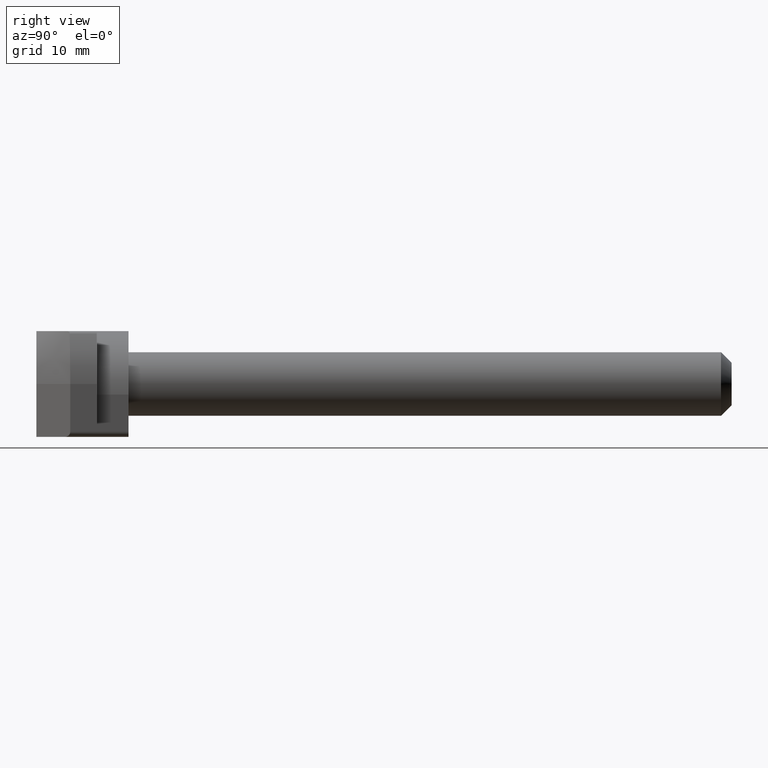
[diagram: clean part render]
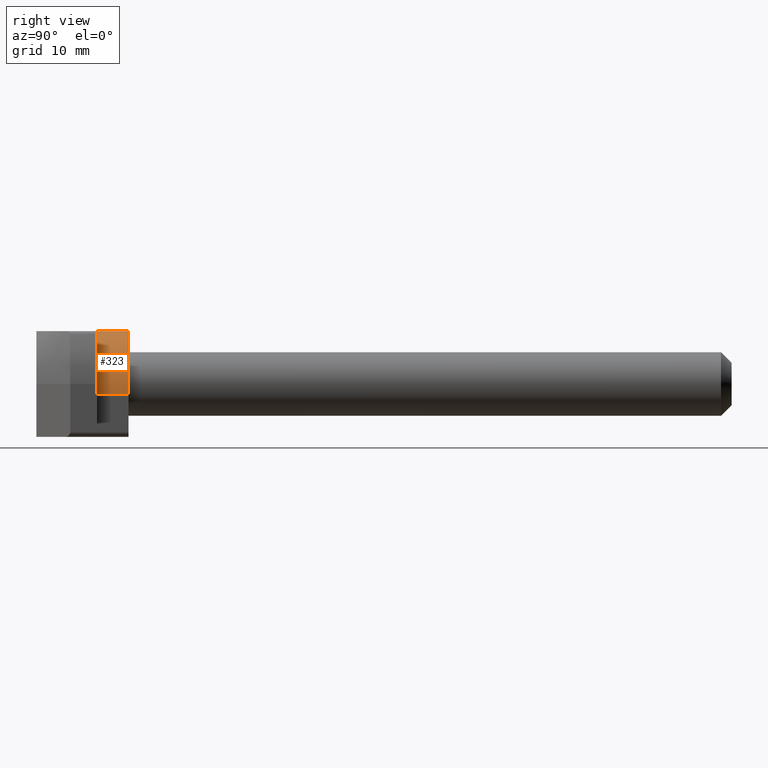
[diagram: same view with one face highlighted and labeled with its STEP entity id]
A machine part, right view. The second image highlights one B-rep face of the part: STEP entity #323.
In plain terms, the highlighted cylindrical surface (partial cylindrical patch) has radius 6 mm, axis along (0, 1, 0).
Its self-contained STEP definition (entity closure, byte-faithful):
#25 = DIRECTION ( 'NONE',  ( 0.000000000000000000, 0.000000000000000000, -1.000000000000000000 ) ) ;
#98 = DIRECTION ( 'NONE',  ( 0.000000000000000000, 0.000000000000000000, -1.000000000000000000 ) ) ;
#149 = ORIENTED_EDGE ( 'NONE', *, *, #272, .F. ) ;
#178 = CARTESIAN_POINT ( 'NONE',  ( -1.000000000000000888, 4.349999999999999645, -1.000000000000000000 ) ) ;
#208 = DIRECTION ( 'NONE',  ( -0.000000000000000000, -1.000000000000000000, -0.000000000000000000 ) ) ;
#214 = CARTESIAN_POINT ( 'NONE',  ( -1.000000000000000888, 1.349999999999999645, 5.000000000000000000 ) ) ;
#272 = EDGE_CURVE ( 'NONE', #911, #561, #376, .T. ) ;
#284 = CYLINDRICAL_SURFACE ( 'NONE', #755, 6.000000000000000000 ) ;
#308 = CIRCLE ( 'NONE', #590, 6.000000000000000000 ) ;
#323 = ADVANCED_FACE ( 'NONE', ( #368 ), #284, .T. ) ;
#342 = CARTESIAN_POINT ( 'NONE',  ( 4.999999999999999112, 4.349999999999999645, -1.000000000000000000 ) ) ;
#365 = AXIS2_PLACEMENT_3D ( 'NONE', #749, #729, #98 ) ;
#368 = FACE_OUTER_BOUND ( 'NONE', #921, .T. ) ;
#376 = CIRCLE ( 'NONE', #365, 6.000000000000000000 ) ;
#397 = DIRECTION ( 'NONE',  ( -0.000000000000000000, 1.000000000000000000, -0.000000000000000000 ) ) ;
#457 = VECTOR ( 'NONE', #917, 1000.000000000000000 ) ;
#491 = CARTESIAN_POINT ( 'NONE',  ( 4.999999999999999112, 4.349999999999999645, -1.000000000000000000 ) ) ;
#506 = DIRECTION ( 'NONE',  ( 0.000000000000000000, 0.000000000000000000, 1.000000000000000000 ) ) ;
#509 = CARTESIAN_POINT ( 'NONE',  ( -1.000000000000000888, 0.000000000000000000, -1.000000000000000000 ) ) ;
#513 = ORIENTED_EDGE ( 'NONE', *, *, #564, .F. ) ;
#544 = VECTOR ( 'NONE', #208, 1000.000000000000000 ) ;
#561 = VERTEX_POINT ( 'NONE', #214 ) ;
#564 = EDGE_CURVE ( 'NONE', #685, #911, #926, .T. ) ;
#566 = DIRECTION ( 'NONE',  ( 0.000000000000000000, 1.000000000000000000, 0.000000000000000000 ) ) ;
#590 = AXIS2_PLACEMENT_3D ( 'NONE', #178, #397, #25 ) ;
#604 = ORIENTED_EDGE ( 'NONE', *, *, #782, .F. ) ;
#624 = CARTESIAN_POINT ( 'NONE',  ( 4.999999999999999112, 1.349999999999999645, -1.000000000000000000 ) ) ;
#629 = CARTESIAN_POINT ( 'NONE',  ( -1.000000000000000888, 0.000000000000000000, 5.000000000000000000 ) ) ;
#685 = VERTEX_POINT ( 'NONE', #342 ) ;
#689 = EDGE_CURVE ( 'NONE', #561, #751, #696, .T. ) ;
#696 = LINE ( 'NONE', #629, #457 ) ;
#729 = DIRECTION ( 'NONE',  ( 0.000000000000000000, -1.000000000000000000, 0.000000000000000000 ) ) ;
#749 = CARTESIAN_POINT ( 'NONE',  ( -1.000000000000000888, 1.349999999999999645, -1.000000000000000000 ) ) ;
#751 = VERTEX_POINT ( 'NONE', #823 ) ;
#754 = ORIENTED_EDGE ( 'NONE', *, *, #689, .F. ) ;
#755 = AXIS2_PLACEMENT_3D ( 'NONE', #509, #566, #506 ) ;
#782 = EDGE_CURVE ( 'NONE', #751, #685, #308, .T. ) ;
#823 = CARTESIAN_POINT ( 'NONE',  ( -1.000000000000000888, 4.349999999999999645, 5.000000000000000000 ) ) ;
#911 = VERTEX_POINT ( 'NONE', #624 ) ;
#917 = DIRECTION ( 'NONE',  ( 0.000000000000000000, 1.000000000000000000, 0.000000000000000000 ) ) ;
#921 = EDGE_LOOP ( 'NONE', ( #149, #513, #604, #754 ) ) ;
#926 = LINE ( 'NONE', #491, #544 ) ;